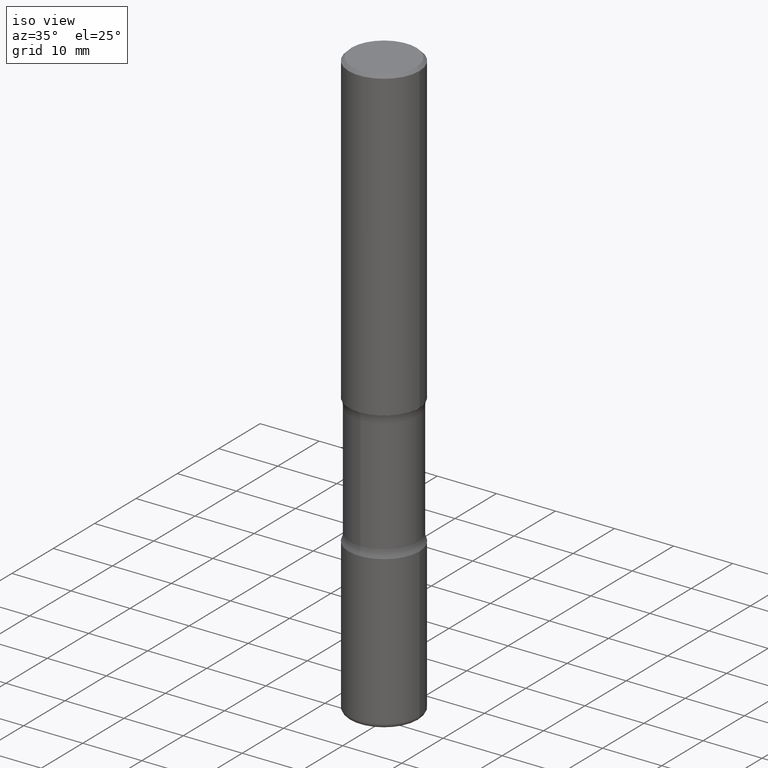
[diagram: clean part render]
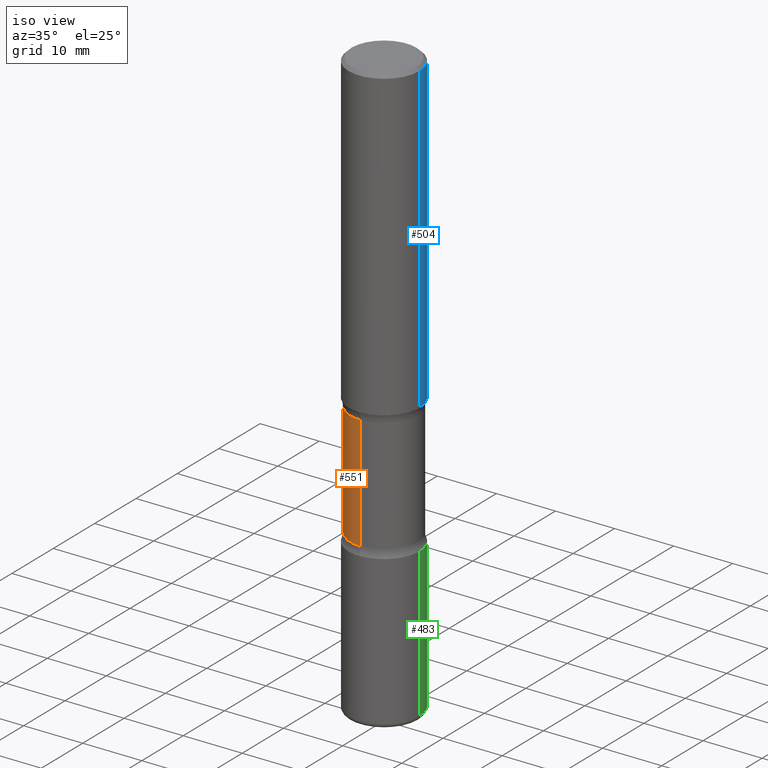
[diagram: same view with three faces highlighted in distinct colors, each labeled with its STEP entity id]
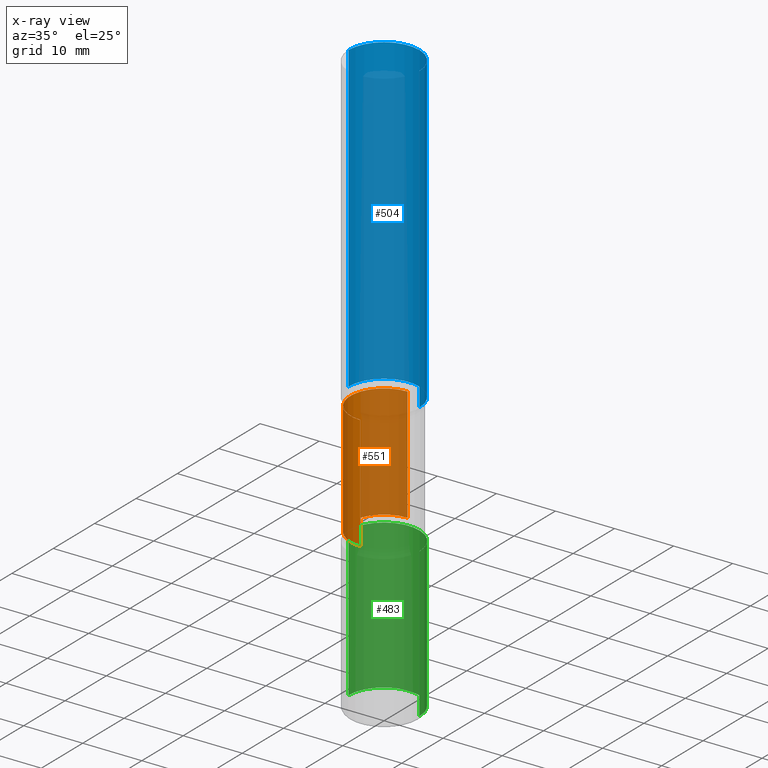
[diagram: x-ray of the same camera — body ghosted, the three highlighted faces saturated]
A machine part, iso view with three faces highlighted in distinct colors.
The next image is the same camera in x-ray (body ghosted, the three faces saturated) — at least one of them is partly hidden behind the body in this view.
Their STEP definitions:

[orange] entity #551 — the highlighted cylindrical surface (partial cylindrical patch) has radius 5.6998 mm, axis along (0, -0, -1).
#9 = EDGE_CURVE ( 'NONE', #103, #114, #559, .T. ) ;
#12 = CARTESIAN_POINT ( 'NONE',  ( -1.579972688886734072E-15, -0.2244000000000073713, -2.100216601173594544 ) ) ;
#16 = EDGE_CURVE ( 'NONE', #379, #26, #428, .T. ) ;
#26 = VERTEX_POINT ( 'NONE', #512 ) ;
#36 = DIRECTION ( 'NONE',  ( 2.525985086076564115E-29, -3.376177443336566513E-15, -1.000000000000000000 ) ) ;
#77 = DIRECTION ( 'NONE',  ( 2.525985086076564115E-29, -3.376177443336566513E-15, -1.000000000000000000 ) ) ;
#80 = DIRECTION ( 'NONE',  ( 2.525985086076564115E-29, -3.376177443336566513E-15, -1.000000000000000000 ) ) ;
#103 = VERTEX_POINT ( 'NONE', #256 ) ;
#114 = VERTEX_POINT ( 'NONE', #291 ) ;
#127 = CARTESIAN_POINT ( 'NONE',  ( 9.710227154047748282E-29, -1.362793696358492956E-14, -3.937000000000000277 ) ) ;
#136 = CARTESIAN_POINT ( 'NONE',  ( 5.070539682259229331E-29, -7.426630284172150130E-15, -2.100216601173595432 ) ) ;
#176 = DIRECTION ( 'NONE',  ( 2.525985086076564115E-29, -3.376177443336566513E-15, -1.000000000000000000 ) ) ;
#188 = EDGE_CURVE ( 'NONE', #26, #114, #470, .T. ) ;
#209 = ORIENTED_EDGE ( 'NONE', *, *, #16, .F. ) ;
#211 = DIRECTION ( 'NONE',  ( 6.982962677686265922E-15, 1.000000000000000000, -2.434802133390609815E-15 ) ) ;
#218 = ORIENTED_EDGE ( 'NONE', *, *, #188, .F. ) ;
#238 = ORIENTED_EDGE ( 'NONE', *, *, #9, .T. ) ;
#256 = CARTESIAN_POINT ( 'NONE',  ( 1.566976824872848494E-15, 0.2243999999999925499, -2.100216601173596320 ) ) ;
#257 = CYLINDRICAL_SURFACE ( 'NONE', #554, 0.2243999999999999329 ) ;
#261 = EDGE_CURVE ( 'NONE', #379, #103, #292, .T. ) ;
#265 = CARTESIAN_POINT ( 'NONE',  ( 6.990709676060807691E-29, -9.993088279580958225E-15, -2.860383398826405354 ) ) ;
#291 = CARTESIAN_POINT ( 'NONE',  ( 1.566976824872867821E-15, 0.2243999999999899686, -2.860383398826405799 ) ) ;
#292 = CIRCLE ( 'NONE', #495, 0.2243999999999999606 ) ;
#309 = FACE_OUTER_BOUND ( 'NONE', #533, .T. ) ;
#310 = ORIENTED_EDGE ( 'NONE', *, *, #261, .T. ) ;
#358 = DIRECTION ( 'NONE',  ( 6.982962677686265922E-15, 1.000000000000000000, -2.434802133390609421E-15 ) ) ;
#364 = DIRECTION ( 'NONE',  ( 2.525985086076564115E-29, -3.376177443336566513E-15, -1.000000000000000000 ) ) ;
#367 = DIRECTION ( 'NONE',  ( 6.982962677686265922E-15, 1.000000000000000000, -3.652203200085913934E-15 ) ) ;
#376 = VECTOR ( 'NONE', #77, 39.37007874015748143 ) ;
#379 = VERTEX_POINT ( 'NONE', #12 ) ;
#398 = CARTESIAN_POINT ( 'NONE',  ( -1.539495750699834052E-15, -0.2244000000000135608, -3.936999999999999389 ) ) ;
#411 = VECTOR ( 'NONE', #36, 39.37007874015748143 ) ;
#428 = LINE ( 'NONE', #398, #411 ) ;
#462 = AXIS2_PLACEMENT_3D ( 'NONE', #265, #176, #358 ) ;
#467 = CARTESIAN_POINT ( 'NONE',  ( 1.566976824872894642E-15, 0.2243999999999863049, -3.937000000000000721 ) ) ;
#470 = CIRCLE ( 'NONE', #462, 0.2243999999999999606 ) ;
#495 = AXIS2_PLACEMENT_3D ( 'NONE', #136, #364, #367 ) ;
#512 = CARTESIAN_POINT ( 'NONE',  ( -1.579972688886713168E-15, -0.2244000000000099804, -2.860383398826404466 ) ) ;
#533 = EDGE_LOOP ( 'NONE', ( #209, #310, #238, #218 ) ) ;
#551 = ADVANCED_FACE ( 'NONE', ( #309 ), #257, .T. ) ;
#554 = AXIS2_PLACEMENT_3D ( 'NONE', #127, #80, #211 ) ;
#559 = LINE ( 'NONE', #467, #376 ) ;

[blue] entity #504 — the highlighted cylindrical surface (partial cylindrical patch) has radius 5.9995 mm, axis along (-0, 0, 1).
#25 = EDGE_CURVE ( 'NONE', #450, #64, #178, .T. ) ;
#27 = DIRECTION ( 'NONE',  ( -2.445468806185136597E-29, 3.491481338843145583E-15, 1.000000000000000000 ) ) ;
#41 = CARTESIAN_POINT ( 'NONE',  ( 5.006363740022212241E-29, -7.147760596879688202E-15, -2.047200000000000131 ) ) ;
#59 = EDGE_CURVE ( 'NONE', #434, #345, #372, .T. ) ;
#64 = VERTEX_POINT ( 'NONE', #393 ) ;
#69 = DIRECTION ( 'NONE',  ( 1.000000000000000000, -6.982962677686266711E-15, 4.876176775795936353E-29 ) ) ;
#89 = CARTESIAN_POINT ( 'NONE',  ( -0.2361999999999999933, 1.678301941865356591E-15, -1.161852468318208757E-29 ) ) ;
#94 = DIRECTION ( 'NONE',  ( -2.445468806185136877E-29, 3.491481338843145188E-15, 1.000000000000000000 ) ) ;
#135 = LINE ( 'NONE', #484, #333 ) ;
#161 = ORIENTED_EDGE ( 'NONE', *, *, #404, .F. ) ;
#174 = DIRECTION ( 'NONE',  ( 1.000000000000000000, -6.982962677686269077E-15, 0.000000000000000000 ) ) ;
#178 = CIRCLE ( 'NONE', #477, 0.2362000000000001321 ) ;
#185 = VECTOR ( 'NONE', #94, 39.37007874015748143 ) ;
#216 = DIRECTION ( 'NONE',  ( -2.445468806185136597E-29, 3.491481338843145583E-15, 1.000000000000000000 ) ) ;
#222 = ORIENTED_EDGE ( 'NONE', *, *, #59, .F. ) ;
#231 = CARTESIAN_POINT ( 'NONE',  ( 0.2361999999999998823, -1.690279253850498179E-15, -0.02000000000000006981 ) ) ;
#282 = LINE ( 'NONE', #89, #185 ) ;
#286 = ORIENTED_EDGE ( 'NONE', *, *, #340, .T. ) ;
#295 = FACE_OUTER_BOUND ( 'NONE', #392, .T. ) ;
#323 = AXIS2_PLACEMENT_3D ( 'NONE', #421, #27, #69 ) ;
#325 = DIRECTION ( 'NONE',  ( -2.445468806185136877E-29, 3.491481338843145188E-15, 1.000000000000000000 ) ) ;
#333 = VECTOR ( 'NONE', #325, 39.37007874015748143 ) ;
#340 = EDGE_CURVE ( 'NONE', #64, #345, #282, .T. ) ;
#345 = VERTEX_POINT ( 'NONE', #480 ) ;
#372 = CIRCLE ( 'NONE', #444, 0.2361999999999998823 ) ;
#382 = DIRECTION ( 'NONE',  ( -2.445468806185136597E-29, 3.491481338843145583E-15, 1.000000000000000000 ) ) ;
#392 = EDGE_LOOP ( 'NONE', ( #413, #286, #222, #161 ) ) ;
#393 = CARTESIAN_POINT ( 'NONE',  ( -0.2362000000000001598, -1.930493169962915017E-15, -2.047200000000000131 ) ) ;
#404 = EDGE_CURVE ( 'NONE', #450, #434, #135, .T. ) ;
#413 = ORIENTED_EDGE ( 'NONE', *, *, #25, .T. ) ;
#421 = CARTESIAN_POINT ( 'NONE',  ( 0.000000000000000000, 0.000000000000000000, 0.000000000000000000 ) ) ;
#434 = VERTEX_POINT ( 'NONE', #231 ) ;
#444 = AXIS2_PLACEMENT_3D ( 'NONE', #520, #382, #515 ) ;
#450 = VERTEX_POINT ( 'NONE', #532 ) ;
#460 = CYLINDRICAL_SURFACE ( 'NONE', #323, 0.2361999999999999933 ) ;
#477 = AXIS2_PLACEMENT_3D ( 'NONE', #41, #216, #174 ) ;
#480 = CARTESIAN_POINT ( 'NONE',  ( -0.2361999999999998823, 1.579546157692632438E-15, -0.02000000000000006981 ) ) ;
#484 = CARTESIAN_POINT ( 'NONE',  ( 0.2361999999999999933, -1.649375784469496131E-15, 1.151752954443000088E-29 ) ) ;
#504 = ADVANCED_FACE ( 'NONE', ( #295 ), #460, .T. ) ;
#515 = DIRECTION ( 'NONE',  ( 1.000000000000000000, -6.982962677686267499E-15, 0.000000000000000000 ) ) ;
#520 = CARTESIAN_POINT ( 'NONE',  ( 4.890937612370289799E-31, -6.982962677686315028E-17, -0.02000000000000006981 ) ) ;
#532 = CARTESIAN_POINT ( 'NONE',  ( 0.2362000000000001321, -8.797136381349186305E-15, -2.047200000000000131 ) ) ;

[green] entity #483 — the highlighted cylindrical surface (partial cylindrical patch) has radius 5.9995 mm, axis along (-0, 0, 1).
#5 = EDGE_LOOP ( 'NONE', ( #381, #388, #206, #378 ) ) ;
#24 = DIRECTION ( 'NONE',  ( 1.000000000000000000, -6.982962677686266711E-15, 4.876176775795935793E-29 ) ) ;
#63 = EDGE_CURVE ( 'NONE', #145, #556, #242, .T. ) ;
#65 = CARTESIAN_POINT ( 'NONE',  ( 0.2362000000000000766, -1.529059337532966657E-14, -3.907000000000000028 ) ) ;
#73 = EDGE_CURVE ( 'NONE', #556, #119, #106, .T. ) ;
#79 = DIRECTION ( 'NONE',  ( -2.445468806185136597E-29, 3.491481338843145583E-15, 1.000000000000000000 ) ) ;
#104 = DIRECTION ( 'NONE',  ( 1.000000000000000000, -6.982962677686269077E-15, 0.000000000000000000 ) ) ;
#106 = CIRCLE ( 'NONE', #313, 0.2362000000000001321 ) ;
#119 = VERTEX_POINT ( 'NONE', #153 ) ;
#144 = AXIS2_PLACEMENT_3D ( 'NONE', #154, #416, #24 ) ;
#145 = VERTEX_POINT ( 'NONE', #65 ) ;
#153 = CARTESIAN_POINT ( 'NONE',  ( -0.2362000000000001321, -1.022834771985753829E-14, -2.913400000000000212 ) ) ;
#154 = CARTESIAN_POINT ( 'NONE',  ( 0.000000000000000000, 0.000000000000000000, 0.000000000000000000 ) ) ;
#182 = CARTESIAN_POINT ( 'NONE',  ( 9.554446625765329033E-29, -1.364121759086017004E-14, -3.907000000000000028 ) ) ;
#190 = DIRECTION ( 'NONE',  ( 1.000000000000000000, -6.982962677686265922E-15, 0.000000000000000000 ) ) ;
#197 = VECTOR ( 'NONE', #397, 39.37007874015748143 ) ;
#199 = CARTESIAN_POINT ( 'NONE',  ( 0.2362000000000002153, -1.649375784469497708E-15, 1.151752954443001069E-29 ) ) ;
#206 = ORIENTED_EDGE ( 'NONE', *, *, #73, .F. ) ;
#213 = CARTESIAN_POINT ( 'NONE',  ( 7.124628819939777829E-29, -1.017208173258562247E-14, -2.913400000000000212 ) ) ;
#242 = LINE ( 'NONE', #199, #452 ) ;
#244 = CIRCLE ( 'NONE', #524, 0.2362000000000002431 ) ;
#251 = FACE_OUTER_BOUND ( 'NONE', #5, .T. ) ;
#313 = AXIS2_PLACEMENT_3D ( 'NONE', #213, #79, #104 ) ;
#360 = CARTESIAN_POINT ( 'NONE',  ( 0.2362000000000001321, -1.182145751705511899E-14, -2.913400000000000212 ) ) ;
#378 = ORIENTED_EDGE ( 'NONE', *, *, #63, .F. ) ;
#381 = ORIENTED_EDGE ( 'NONE', *, *, #383, .T. ) ;
#383 = EDGE_CURVE ( 'NONE', #145, #481, #244, .T. ) ;
#388 = ORIENTED_EDGE ( 'NONE', *, *, #511, .T. ) ;
#397 = DIRECTION ( 'NONE',  ( -2.445468806185136877E-29, 3.491481338843145188E-15, 1.000000000000000000 ) ) ;
#416 = DIRECTION ( 'NONE',  ( -2.445468806185136597E-29, 3.491481338843145583E-15, 1.000000000000000000 ) ) ;
#425 = DIRECTION ( 'NONE',  ( -2.445468806185136877E-29, 3.491481338843145188E-15, 1.000000000000000000 ) ) ;
#431 = CARTESIAN_POINT ( 'NONE',  ( -0.2362000000000002153, 1.678301941865358169E-15, -1.161852468318209878E-29 ) ) ;
#452 = VECTOR ( 'NONE', #425, 39.37007874015748143 ) ;
#466 = LINE ( 'NONE', #431, #197 ) ;
#481 = VERTEX_POINT ( 'NONE', #535 ) ;
#483 = ADVANCED_FACE ( 'NONE', ( #251 ), #494, .T. ) ;
#494 = CYLINDRICAL_SURFACE ( 'NONE', #144, 0.2362000000000002153 ) ;
#511 = EDGE_CURVE ( 'NONE', #481, #119, #466, .T. ) ;
#522 = DIRECTION ( 'NONE',  ( -2.445468806185136597E-29, 3.491481338843145583E-15, 1.000000000000000000 ) ) ;
#524 = AXIS2_PLACEMENT_3D ( 'NONE', #182, #522, #190 ) ;
#535 = CARTESIAN_POINT ( 'NONE',  ( -0.2362000000000000766, -1.196291564899481365E-14, -3.907000000000000028 ) ) ;
#556 = VERTEX_POINT ( 'NONE', #360 ) ;